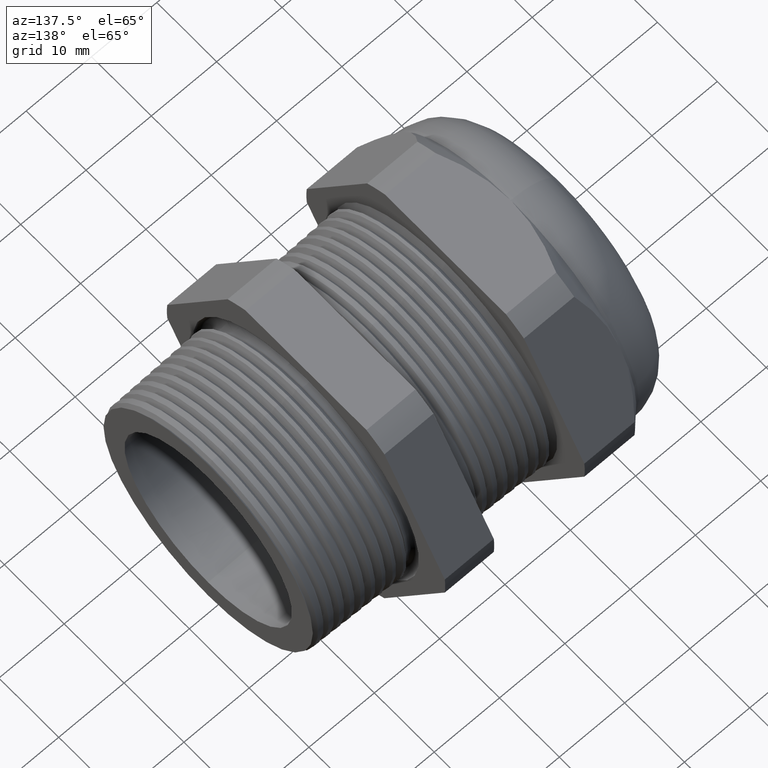
[diagram: clean part render]
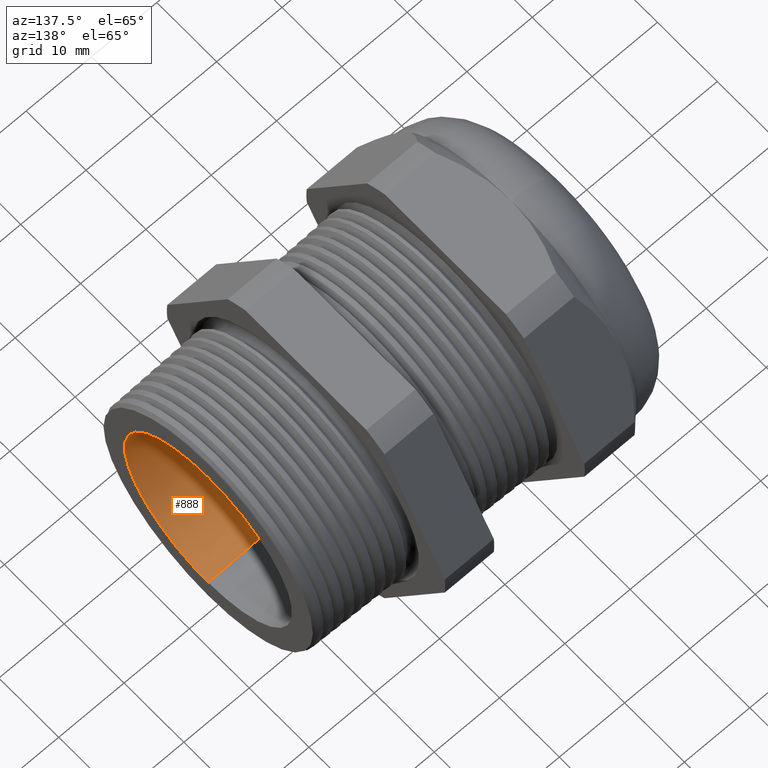
[diagram: same view with one face highlighted and labeled with its STEP entity id]
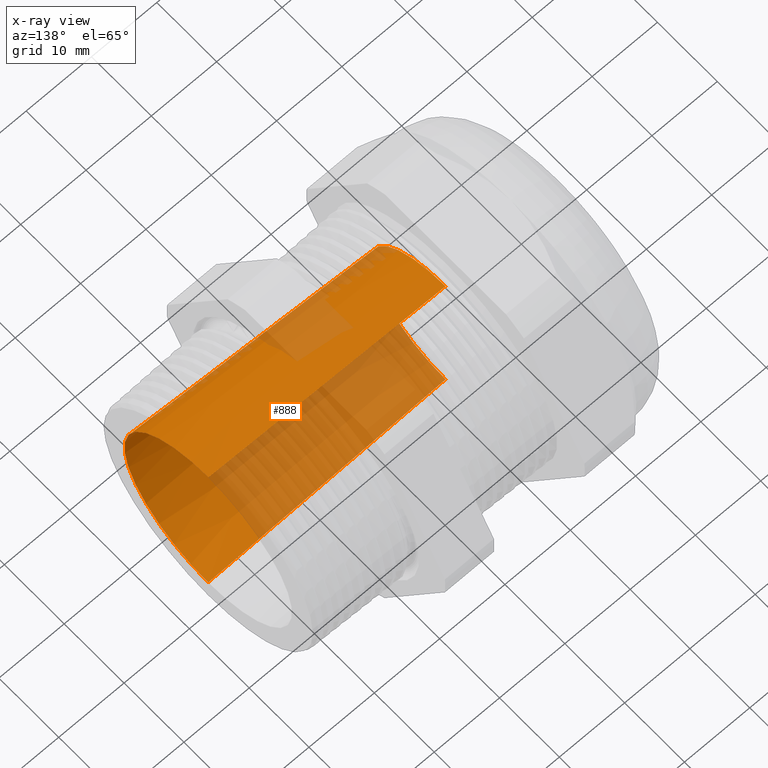
[diagram: x-ray of the same camera — body ghosted, the highlighted face saturated]
A machine part, auxiliary view. The second image highlights one B-rep face of the part: STEP entity #888.
The next image is the same camera in x-ray: the body ghosted, the highlighted face saturated — about 44% of this face is hidden behind the body in this view.
In plain terms, the highlighted conical surface has half-angle 2.451 deg.
Its self-contained STEP definition (entity closure, byte-faithful):
#882 = VERTEX_POINT ( 'NONE', #1873 ) ;
#884 = EDGE_CURVE ( 'NONE', #882, #885, #1872, .T. ) ;
#885 = VERTEX_POINT ( 'NONE', #1929 ) ;
#888 = ADVANCED_FACE ( 'NONE', ( #1924 ), #1923, .F. ) ;
#889 = EDGE_LOOP ( 'NONE', ( #890, #891, #950, #953 ) ) ;
#890 = ORIENTED_EDGE ( 'NONE', *, *, #884, .F. ) ;
#891 = ORIENTED_EDGE ( 'NONE', *, *, #949, .T. ) ;
#892 = VERTEX_POINT ( 'NONE', #1918 ) ;
#949 = EDGE_CURVE ( 'NONE', #882, #892, #2001, .T. ) ;
#950 = ORIENTED_EDGE ( 'NONE', *, *, #951, .T. ) ;
#951 = EDGE_CURVE ( 'NONE', #892, #952, #1997, .T. ) ;
#952 = VERTEX_POINT ( 'NONE', #2055 ) ;
#953 = ORIENTED_EDGE ( 'NONE', *, *, #954, .F. ) ;
#954 = EDGE_CURVE ( 'NONE', #885, #952, #2054, .T. ) ;
#1870 = CARTESIAN_POINT ( 'NONE',  ( -1.151023622047244100, 0.0000000000000000000, 0.0000000000000000000 ) ) ;
#1871 = AXIS2_PLACEMENT_3D ( 'NONE', #1870, #1931, #1930 ) ;
#1872 = CIRCLE ( 'NONE', #1871, 0.4899999999999999900 ) ;
#1873 = CARTESIAN_POINT ( 'NONE',  ( -1.151023622047244100, 6.375817398060907200E-017, 0.4899999999999999900 ) ) ;
#1918 = CARTESIAN_POINT ( 'NONE',  ( 0.2800000000000000300, 6.750865480299784700E-017, 0.5512500000000000200 ) ) ;
#1919 = DIRECTION ( 'NONE',  ( 0.0000000000000000000, 0.0000000000000000000, -1.000000000000000000 ) ) ;
#1920 = DIRECTION ( 'NONE',  ( 1.000000000000000000, 0.0000000000000000000, 0.0000000000000000000 ) ) ;
#1921 = CARTESIAN_POINT ( 'NONE',  ( -1.151023622047244100, 0.0000000000000000000, 0.0000000000000000000 ) ) ;
#1922 = AXIS2_PLACEMENT_3D ( 'NONE', #1921, #1920, #1919 ) ;
#1923 = CONICAL_SURFACE ( 'NONE', #1922, 0.4899999999999999900, 0.04277542129675021600 ) ;
#1924 = FACE_OUTER_BOUND ( 'NONE', #889, .T. ) ;
#1929 = CARTESIAN_POINT ( 'NONE',  ( -1.151023622047244100, 0.0000000000000000000, -0.4899999999999999900 ) ) ;
#1930 = DIRECTION ( 'NONE',  ( 0.0000000000000000000, 0.0000000000000000000, -1.000000000000000000 ) ) ;
#1931 = DIRECTION ( 'NONE',  ( 1.000000000000000000, 0.0000000000000000000, 0.0000000000000000000 ) ) ;
#1997 = CIRCLE ( 'NONE', #2059, 0.5512500000000000200 ) ;
#1998 = DIRECTION ( 'NONE',  ( 0.9990852711552795600, 5.236880917504878800E-018, 0.04276237786397677600 ) ) ;
#1999 = VECTOR ( 'NONE', #1998, 39.37007874015748100 ) ;
#2000 = CARTESIAN_POINT ( 'NONE',  ( -1.151023622047244100, 6.000769315822029800E-017, 0.4899999999999999900 ) ) ;
#2001 = LINE ( 'NONE', #2000, #1999 ) ;
#2051 = DIRECTION ( 'NONE',  ( 0.9990852711552795600, 0.0000000000000000000, -0.04276237786397677600 ) ) ;
#2052 = VECTOR ( 'NONE', #2051, 39.37007874015748100 ) ;
#2053 = CARTESIAN_POINT ( 'NONE',  ( -1.151023622047244100, 0.0000000000000000000, -0.4899999999999999900 ) ) ;
#2054 = LINE ( 'NONE', #2053, #2052 ) ;
#2055 = CARTESIAN_POINT ( 'NONE',  ( 0.2800000000000000300, 0.0000000000000000000, -0.5512500000000000200 ) ) ;
#2056 = DIRECTION ( 'NONE',  ( 0.0000000000000000000, 0.0000000000000000000, -1.000000000000000000 ) ) ;
#2057 = DIRECTION ( 'NONE',  ( 1.000000000000000000, 0.0000000000000000000, 0.0000000000000000000 ) ) ;
#2058 = CARTESIAN_POINT ( 'NONE',  ( 0.2800000000000000300, 0.0000000000000000000, 0.0000000000000000000 ) ) ;
#2059 = AXIS2_PLACEMENT_3D ( 'NONE', #2058, #2057, #2056 ) ;